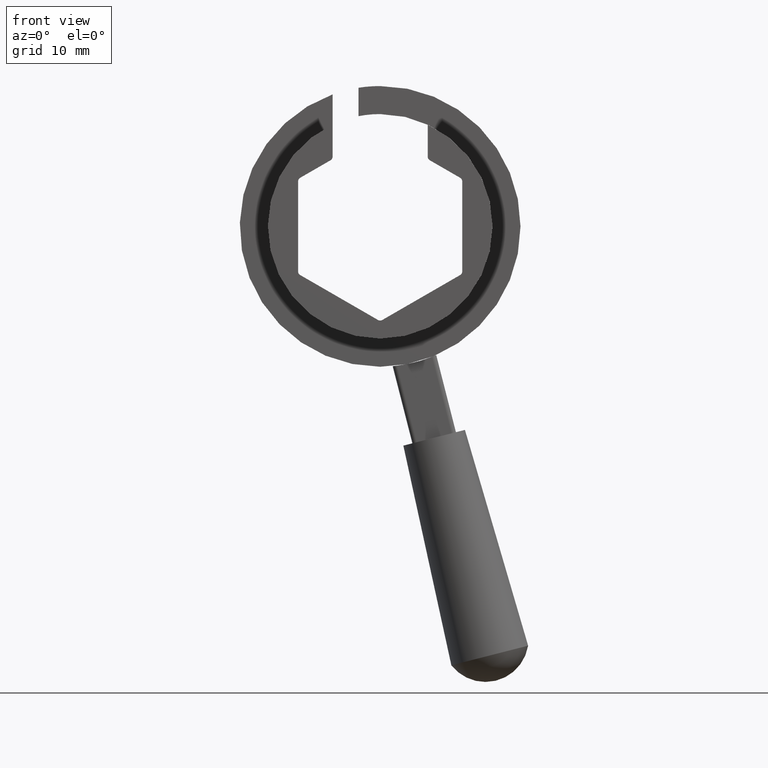
[diagram: clean part render]
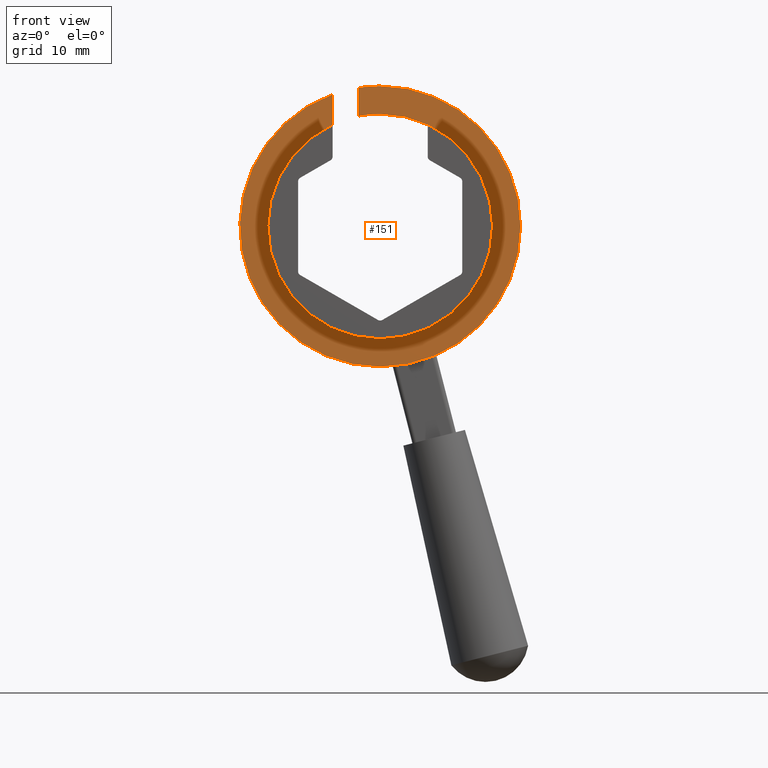
[diagram: same view with one face highlighted and labeled with its STEP entity id]
A machine part, front view. The second image highlights one B-rep face of the part: STEP entity #151.
In plain terms, the highlighted planar face has unit normal (0, 1, 0).
Its self-contained STEP definition (entity closure, byte-faithful):
#1 = ORIENTED_EDGE ( 'NONE', *, *, #11, .F. ) ;
#11 = EDGE_CURVE ( 'NONE', #13, #81, #445, .T. ) ;
#13 = VERTEX_POINT ( 'NONE', #440 ) ;
#16 = VERTEX_POINT ( 'NONE', #433 ) ;
#21 = ORIENTED_EDGE ( 'NONE', *, *, #97, .F. ) ;
#28 = EDGE_CURVE ( 'NONE', #54, #16, #534, .T. ) ;
#31 = EDGE_CURVE ( 'NONE', #81, #54, #539, .T. ) ;
#54 = VERTEX_POINT ( 'NONE', #617 ) ;
#69 = EDGE_CURVE ( 'NONE', #76, #70, #598, .T. ) ;
#70 = VERTEX_POINT ( 'NONE', #591 ) ;
#75 = EDGE_CURVE ( 'NONE', #94, #76, #606, .T. ) ;
#76 = VERTEX_POINT ( 'NONE', #601 ) ;
#81 = VERTEX_POINT ( 'NONE', #646 ) ;
#91 = EDGE_CURVE ( 'NONE', #16, #94, #668, .T. ) ;
#94 = VERTEX_POINT ( 'NONE', #655 ) ;
#96 = VERTEX_POINT ( 'NONE', #649 ) ;
#97 = EDGE_CURVE ( 'NONE', #96, #13, #647, .T. ) ;
#120 = ORIENTED_EDGE ( 'NONE', *, *, #91, .F. ) ;
#122 = EDGE_LOOP ( 'NONE', ( #120, #123, #165, #1, #21, #124, #240, #260 ) ) ;
#123 = ORIENTED_EDGE ( 'NONE', *, *, #28, .F. ) ;
#124 = ORIENTED_EDGE ( 'NONE', *, *, #154, .F. ) ;
#151 = ADVANCED_FACE ( 'NONE', ( #684 ), #678, .F. ) ;
#154 = EDGE_CURVE ( 'NONE', #70, #96, #677, .T. ) ;
#165 = ORIENTED_EDGE ( 'NONE', *, *, #31, .F. ) ;
#240 = ORIENTED_EDGE ( 'NONE', *, *, #69, .F. ) ;
#260 = ORIENTED_EDGE ( 'NONE', *, *, #75, .F. ) ;
#433 = CARTESIAN_POINT ( 'NONE',  ( -5.500000000000001800, 24.49899999999999500, 11.77921898938974700 ) ) ;
#440 = CARTESIAN_POINT ( 'NONE',  ( 0.0000000000000000000, 24.49899999999999500, 16.24000000000000600 ) ) ;
#441 = DIRECTION ( 'NONE',  ( 0.0000000000000000000, 0.0000000000000000000, 1.000000000000000000 ) ) ;
#442 = DIRECTION ( 'NONE',  ( 0.0000000000000000000, 1.000000000000000000, 0.0000000000000000000 ) ) ;
#443 = CARTESIAN_POINT ( 'NONE',  ( 0.0000000000000000000, 24.49899999999999500, 0.0000000000000000000 ) ) ;
#444 = AXIS2_PLACEMENT_3D ( 'NONE', #443, #442, #441 ) ;
#445 = CIRCLE ( 'NONE', #444, 16.24000000000000600 ) ;
#531 = DIRECTION ( 'NONE',  ( 0.0000000000000000000, 0.0000000000000000000, -1.000000000000000000 ) ) ;
#532 = VECTOR ( 'NONE', #531, 1000.000000000000000 ) ;
#533 = CARTESIAN_POINT ( 'NONE',  ( -5.500000000000001800, 24.49899999999999500, 11.77921898938974700 ) ) ;
#534 = LINE ( 'NONE', #533, #532 ) ;
#539 = CIRCLE ( 'NONE', #566, 16.24000000000000600 ) ;
#548 = DIRECTION ( 'NONE',  ( 0.0000000000000000000, 0.0000000000000000000, 1.000000000000000000 ) ) ;
#564 = DIRECTION ( 'NONE',  ( 0.0000000000000000000, 1.000000000000000000, 0.0000000000000000000 ) ) ;
#565 = CARTESIAN_POINT ( 'NONE',  ( 0.0000000000000000000, 24.49899999999999500, 0.0000000000000000000 ) ) ;
#566 = AXIS2_PLACEMENT_3D ( 'NONE', #565, #564, #548 ) ;
#591 = CARTESIAN_POINT ( 'NONE',  ( -2.500000000000000000, 24.49899999999999500, 12.75735082217307500 ) ) ;
#592 = DIRECTION ( 'NONE',  ( 0.0000000000000000000, 0.0000000000000000000, 1.000000000000000000 ) ) ;
#593 = DIRECTION ( 'NONE',  ( 0.0000000000000000000, -1.000000000000000000, 0.0000000000000000000 ) ) ;
#594 = CARTESIAN_POINT ( 'NONE',  ( 0.0000000000000000000, 24.49899999999999500, 0.0000000000000000000 ) ) ;
#597 = AXIS2_PLACEMENT_3D ( 'NONE', #594, #593, #592 ) ;
#598 = CIRCLE ( 'NONE', #597, 13.00000000000000200 ) ;
#601 = CARTESIAN_POINT ( 'NONE',  ( 0.0000000000000000000, 24.49899999999999500, 13.00000000000000200 ) ) ;
#602 = DIRECTION ( 'NONE',  ( 0.0000000000000000000, 0.0000000000000000000, 1.000000000000000000 ) ) ;
#603 = DIRECTION ( 'NONE',  ( 0.0000000000000000000, -1.000000000000000000, 0.0000000000000000000 ) ) ;
#604 = CARTESIAN_POINT ( 'NONE',  ( 0.0000000000000000000, 24.49899999999999500, 0.0000000000000000000 ) ) ;
#605 = AXIS2_PLACEMENT_3D ( 'NONE', #604, #603, #602 ) ;
#606 = CIRCLE ( 'NONE', #605, 13.00000000000000200 ) ;
#617 = CARTESIAN_POINT ( 'NONE',  ( -5.500000000000005300, 24.49899999999999500, 15.28030104415486100 ) ) ;
#645 = CARTESIAN_POINT ( 'NONE',  ( 0.0000000000000000000, 24.49899999999999500, 0.0000000000000000000 ) ) ;
#646 = CARTESIAN_POINT ( 'NONE',  ( 1.988826401815302100E-015, 24.49899999999999500, -16.24000000000000600 ) ) ;
#647 = CIRCLE ( 'NONE', #664, 16.24000000000000600 ) ;
#649 = CARTESIAN_POINT ( 'NONE',  ( -2.500000000000000000, 24.49899999999999500, 16.04642016151889500 ) ) ;
#655 = CARTESIAN_POINT ( 'NONE',  ( 1.592040838891559300E-015, 24.49899999999999500, -13.00000000000000200 ) ) ;
#661 = DIRECTION ( 'NONE',  ( 0.0000000000000000000, 0.0000000000000000000, 1.000000000000000000 ) ) ;
#662 = DIRECTION ( 'NONE',  ( 0.0000000000000000000, 1.000000000000000000, 0.0000000000000000000 ) ) ;
#663 = CARTESIAN_POINT ( 'NONE',  ( 0.0000000000000000000, 24.49899999999999500, 0.0000000000000000000 ) ) ;
#664 = AXIS2_PLACEMENT_3D ( 'NONE', #663, #662, #661 ) ;
#665 = DIRECTION ( 'NONE',  ( 0.0000000000000000000, -1.000000000000000000, 0.0000000000000000000 ) ) ;
#666 = DIRECTION ( 'NONE',  ( 0.0000000000000000000, 0.0000000000000000000, 1.000000000000000000 ) ) ;
#667 = AXIS2_PLACEMENT_3D ( 'NONE', #645, #665, #666 ) ;
#668 = CIRCLE ( 'NONE', #667, 13.00000000000000200 ) ;
#670 = DIRECTION ( 'NONE',  ( 0.0000000000000000000, 0.0000000000000000000, 1.000000000000000000 ) ) ;
#671 = VECTOR ( 'NONE', #670, 1000.000000000000000 ) ;
#672 = CARTESIAN_POINT ( 'NONE',  ( -2.500000000000000000, 24.49899999999999500, 12.75735082217307500 ) ) ;
#673 = DIRECTION ( 'NONE',  ( 0.0000000000000000000, 0.0000000000000000000, 1.000000000000000000 ) ) ;
#674 = DIRECTION ( 'NONE',  ( 0.0000000000000000000, 1.000000000000000000, 0.0000000000000000000 ) ) ;
#675 = CARTESIAN_POINT ( 'NONE',  ( 0.0000000000000000000, 24.49899999999999500, 0.0000000000000000000 ) ) ;
#676 = AXIS2_PLACEMENT_3D ( 'NONE', #675, #674, #673 ) ;
#677 = LINE ( 'NONE', #672, #671 ) ;
#678 = PLANE ( 'NONE',  #676 ) ;
#684 = FACE_OUTER_BOUND ( 'NONE', #122, .T. ) ;